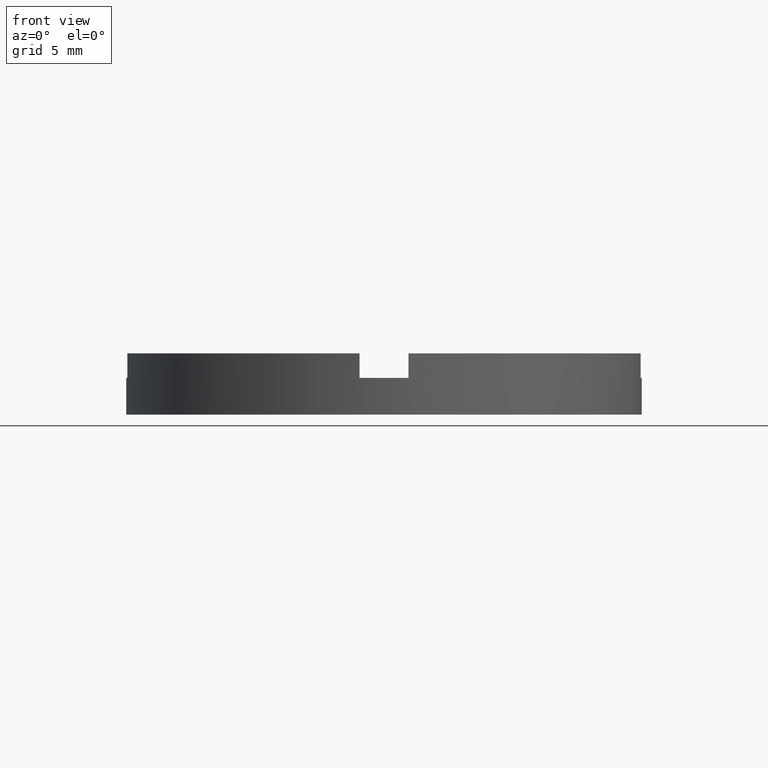
[diagram: clean part render]
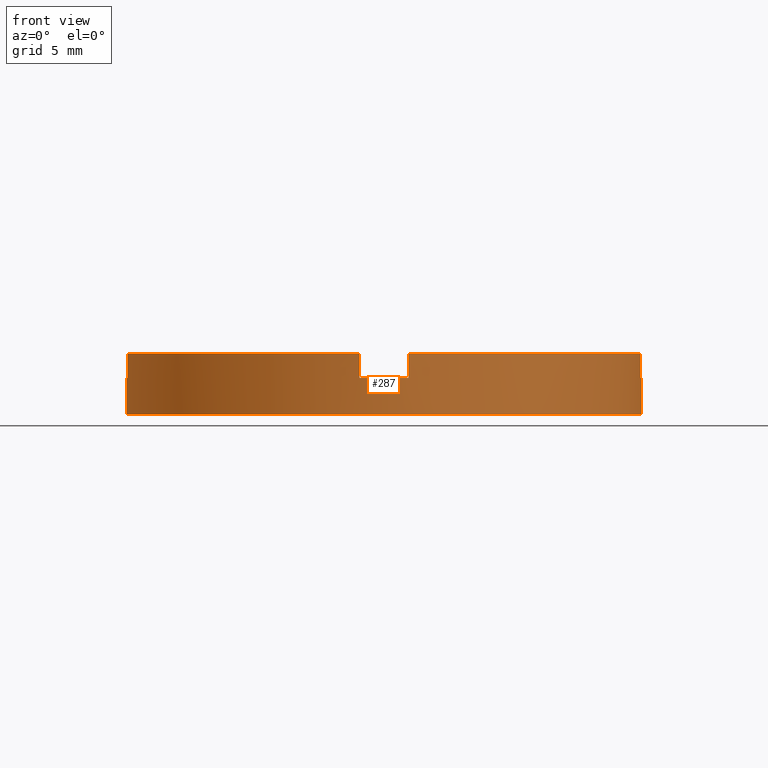
[diagram: same view with one face highlighted and labeled with its STEP entity id]
A machine part, front view. The second image highlights one B-rep face of the part: STEP entity #287.
In plain terms, the highlighted cylindrical surface (partial cylindrical patch) has radius 10.5 mm, axis along (-0, -0, -1).
Its self-contained STEP definition (entity closure, byte-faithful):
#4 = DIRECTION ( 'NONE',  ( 0.000000000000000000, 0.000000000000000000, 1.000000000000000000 ) ) ;
#6 = EDGE_CURVE ( 'NONE', #219, #714, #130, .T. ) ;
#15 = CARTESIAN_POINT ( 'NONE',  ( 10.45227248018342436, -1.000000000000158984, 2.500000000000000000 ) ) ;
#18 = CARTESIAN_POINT ( 'NONE',  ( 0.000000000000000000, 0.000000000000000000, 1.500000000000000000 ) ) ;
#43 = CARTESIAN_POINT ( 'NONE',  ( -1.000000000000162759, -10.45227248018342259, 2.500000000000000000 ) ) ;
#45 = AXIS2_PLACEMENT_3D ( 'NONE', #198, #4, #617 ) ;
#64 = CARTESIAN_POINT ( 'NONE',  ( 0.9999999999998371303, -10.45227248018345456, 2.500000000000000000 ) ) ;
#71 = AXIS2_PLACEMENT_3D ( 'NONE', #18, #699, #304 ) ;
#83 = LINE ( 'NONE', #64, #362 ) ;
#99 = VECTOR ( 'NONE', #772, 1000.000000000000000 ) ;
#108 = CYLINDRICAL_SURFACE ( 'NONE', #250, 10.50000000000000178 ) ;
#109 = CARTESIAN_POINT ( 'NONE',  ( -1.000000000000162759, -10.45227248018342259, 2.500000000000000000 ) ) ;
#123 = ORIENTED_EDGE ( 'NONE', *, *, #595, .F. ) ;
#130 = LINE ( 'NONE', #299, #373 ) ;
#133 = ORIENTED_EDGE ( 'NONE', *, *, #720, .F. ) ;
#135 = ORIENTED_EDGE ( 'NONE', *, *, #152, .F. ) ;
#146 = VERTEX_POINT ( 'NONE', #288 ) ;
#147 = VERTEX_POINT ( 'NONE', #780 ) ;
#152 = EDGE_CURVE ( 'NONE', #444, #146, #354, .T. ) ;
#154 = ORIENTED_EDGE ( 'NONE', *, *, #677, .F. ) ;
#156 = ORIENTED_EDGE ( 'NONE', *, *, #530, .T. ) ;
#163 = ORIENTED_EDGE ( 'NONE', *, *, #598, .T. ) ;
#167 = VERTEX_POINT ( 'NONE', #43 ) ;
#178 = CARTESIAN_POINT ( 'NONE',  ( 10.50000000000000178, 1.285879139104721028E-15, 1.500000000000000000 ) ) ;
#188 = CARTESIAN_POINT ( 'NONE',  ( 0.000000000000000000, 0.000000000000000000, 0.000000000000000000 ) ) ;
#191 = AXIS2_PLACEMENT_3D ( 'NONE', #188, #703, #721 ) ;
#198 = CARTESIAN_POINT ( 'NONE',  ( 0.000000000000000000, 0.000000000000000000, 2.500000000000000000 ) ) ;
#203 = DIRECTION ( 'NONE',  ( -0.000000000000000000, -0.000000000000000000, -1.000000000000000000 ) ) ;
#219 = VERTEX_POINT ( 'NONE', #520 ) ;
#234 = CIRCLE ( 'NONE', #71, 10.50000000000000178 ) ;
#241 = EDGE_CURVE ( 'NONE', #664, #453, #83, .T. ) ;
#242 = VECTOR ( 'NONE', #585, 1000.000000000000000 ) ;
#250 = AXIS2_PLACEMENT_3D ( 'NONE', #442, #636, #726 ) ;
#251 = LINE ( 'NONE', #15, #242 ) ;
#253 = CARTESIAN_POINT ( 'NONE',  ( -1.000000000000162759, -10.45227248018342259, 1.500000000000000000 ) ) ;
#254 = CARTESIAN_POINT ( 'NONE',  ( 0.9999999999998371303, -10.45227248018345456, 2.500000000000000000 ) ) ;
#260 = DIRECTION ( 'NONE',  ( 0.000000000000000000, 0.000000000000000000, 1.000000000000000000 ) ) ;
#270 = CIRCLE ( 'NONE', #300, 10.50000000000000178 ) ;
#273 = CARTESIAN_POINT ( 'NONE',  ( 0.000000000000000000, 0.000000000000000000, 2.500000000000000000 ) ) ;
#287 = ADVANCED_FACE ( 'NONE', ( #364 ), #108, .T. ) ;
#288 = CARTESIAN_POINT ( 'NONE',  ( 10.50000000000000178, 1.285879139104721028E-15, 0.000000000000000000 ) ) ;
#293 = CIRCLE ( 'NONE', #705, 10.50000000000000178 ) ;
#299 = CARTESIAN_POINT ( 'NONE',  ( -10.50000000000000178, 0.000000000000000000, 2.500000000000000000 ) ) ;
#300 = AXIS2_PLACEMENT_3D ( 'NONE', #273, #649, #324 ) ;
#304 = DIRECTION ( 'NONE',  ( 1.000000000000000000, 0.000000000000000000, 0.000000000000000000 ) ) ;
#305 = DIRECTION ( 'NONE',  ( -0.000000000000000000, -0.000000000000000000, -1.000000000000000000 ) ) ;
#308 = CARTESIAN_POINT ( 'NONE',  ( 0.9999999999998371303, -10.45227248018345456, 1.500000000000000000 ) ) ;
#315 = EDGE_CURVE ( 'NONE', #400, #453, #293, .T. ) ;
#324 = DIRECTION ( 'NONE',  ( 1.000000000000000000, 0.000000000000000000, 0.000000000000000000 ) ) ;
#352 = DIRECTION ( 'NONE',  ( -0.000000000000000000, 0.000000000000000000, 1.000000000000000000 ) ) ;
#354 = LINE ( 'NONE', #403, #99 ) ;
#362 = VECTOR ( 'NONE', #203, 1000.000000000000000 ) ;
#364 = FACE_OUTER_BOUND ( 'NONE', #666, .T. ) ;
#373 = VECTOR ( 'NONE', #305, 1000.000000000000000 ) ;
#386 = ORIENTED_EDGE ( 'NONE', *, *, #6, .T. ) ;
#392 = ORIENTED_EDGE ( 'NONE', *, *, #241, .T. ) ;
#400 = VERTEX_POINT ( 'NONE', #253 ) ;
#403 = CARTESIAN_POINT ( 'NONE',  ( 10.50000000000000178, 1.285879139104721028E-15, 2.500000000000000000 ) ) ;
#412 = VERTEX_POINT ( 'NONE', #729 ) ;
#420 = DIRECTION ( 'NONE',  ( 1.000000000000000000, 0.000000000000000000, 0.000000000000000000 ) ) ;
#442 = CARTESIAN_POINT ( 'NONE',  ( 0.000000000000000000, 0.000000000000000000, 2.500000000000000000 ) ) ;
#444 = VERTEX_POINT ( 'NONE', #178 ) ;
#448 = VERTEX_POINT ( 'NONE', #573 ) ;
#453 = VERTEX_POINT ( 'NONE', #308 ) ;
#460 = DIRECTION ( 'NONE',  ( -0.000000000000000000, 0.000000000000000000, 1.000000000000000000 ) ) ;
#481 = EDGE_CURVE ( 'NONE', #714, #146, #774, .T. ) ;
#487 = ORIENTED_EDGE ( 'NONE', *, *, #315, .F. ) ;
#491 = LINE ( 'NONE', #109, #762 ) ;
#520 = CARTESIAN_POINT ( 'NONE',  ( -10.50000000000000178, 0.000000000000000000, 1.500000000000000000 ) ) ;
#530 = EDGE_CURVE ( 'NONE', #400, #167, #491, .T. ) ;
#535 = CIRCLE ( 'NONE', #590, 10.50000000000000178 ) ;
#540 = EDGE_CURVE ( 'NONE', #219, #641, #234, .T. ) ;
#546 = CARTESIAN_POINT ( 'NONE',  ( -10.45227248018343680, -1.000000000000021760, 1.500000000000000000 ) ) ;
#548 = DIRECTION ( 'NONE',  ( 1.000000000000000000, 0.000000000000000000, 0.000000000000000000 ) ) ;
#573 = CARTESIAN_POINT ( 'NONE',  ( -10.45227248018343680, -1.000000000000021760, 2.500000000000000000 ) ) ;
#585 = DIRECTION ( 'NONE',  ( 0.000000000000000000, 0.000000000000000000, 1.000000000000000000 ) ) ;
#590 = AXIS2_PLACEMENT_3D ( 'NONE', #723, #352, #420 ) ;
#595 = EDGE_CURVE ( 'NONE', #448, #167, #766, .T. ) ;
#598 = EDGE_CURVE ( 'NONE', #412, #147, #251, .T. ) ;
#612 = ORIENTED_EDGE ( 'NONE', *, *, #481, .T. ) ;
#617 = DIRECTION ( 'NONE',  ( 1.000000000000000000, 0.000000000000000000, 0.000000000000000000 ) ) ;
#620 = EDGE_CURVE ( 'NONE', #448, #641, #760, .T. ) ;
#636 = DIRECTION ( 'NONE',  ( -0.000000000000000000, -0.000000000000000000, -1.000000000000000000 ) ) ;
#640 = CARTESIAN_POINT ( 'NONE',  ( -10.45227248018343680, -1.000000000000021760, 2.500000000000000000 ) ) ;
#641 = VERTEX_POINT ( 'NONE', #546 ) ;
#649 = DIRECTION ( 'NONE',  ( 0.000000000000000000, 0.000000000000000000, 1.000000000000000000 ) ) ;
#661 = ORIENTED_EDGE ( 'NONE', *, *, #540, .F. ) ;
#664 = VERTEX_POINT ( 'NONE', #254 ) ;
#666 = EDGE_LOOP ( 'NONE', ( #135, #154, #163, #133, #392, #487, #156, #123, #750, #661, #386, #612 ) ) ;
#677 = EDGE_CURVE ( 'NONE', #412, #444, #535, .T. ) ;
#699 = DIRECTION ( 'NONE',  ( 0.000000000000000000, 0.000000000000000000, 1.000000000000000000 ) ) ;
#703 = DIRECTION ( 'NONE',  ( 0.000000000000000000, 0.000000000000000000, 1.000000000000000000 ) ) ;
#705 = AXIS2_PLACEMENT_3D ( 'NONE', #759, #460, #548 ) ;
#711 = DIRECTION ( 'NONE',  ( -0.000000000000000000, -0.000000000000000000, -1.000000000000000000 ) ) ;
#714 = VERTEX_POINT ( 'NONE', #737 ) ;
#720 = EDGE_CURVE ( 'NONE', #664, #147, #270, .T. ) ;
#721 = DIRECTION ( 'NONE',  ( 1.000000000000000000, 0.000000000000000000, 0.000000000000000000 ) ) ;
#723 = CARTESIAN_POINT ( 'NONE',  ( 0.000000000000000000, 0.000000000000000000, 1.500000000000000000 ) ) ;
#726 = DIRECTION ( 'NONE',  ( -1.000000000000000000, 0.000000000000000000, 0.000000000000000000 ) ) ;
#729 = CARTESIAN_POINT ( 'NONE',  ( 10.45227248018342436, -1.000000000000158984, 1.500000000000000000 ) ) ;
#737 = CARTESIAN_POINT ( 'NONE',  ( -10.50000000000000178, 0.000000000000000000, 0.000000000000000000 ) ) ;
#750 = ORIENTED_EDGE ( 'NONE', *, *, #620, .T. ) ;
#759 = CARTESIAN_POINT ( 'NONE',  ( 0.000000000000000000, 0.000000000000000000, 1.500000000000000000 ) ) ;
#760 = LINE ( 'NONE', #640, #767 ) ;
#762 = VECTOR ( 'NONE', #260, 1000.000000000000000 ) ;
#766 = CIRCLE ( 'NONE', #45, 10.50000000000000178 ) ;
#767 = VECTOR ( 'NONE', #711, 1000.000000000000000 ) ;
#772 = DIRECTION ( 'NONE',  ( -0.000000000000000000, -0.000000000000000000, -1.000000000000000000 ) ) ;
#774 = CIRCLE ( 'NONE', #191, 10.50000000000000178 ) ;
#780 = CARTESIAN_POINT ( 'NONE',  ( 10.45227248018342436, -1.000000000000158984, 2.500000000000000000 ) ) ;